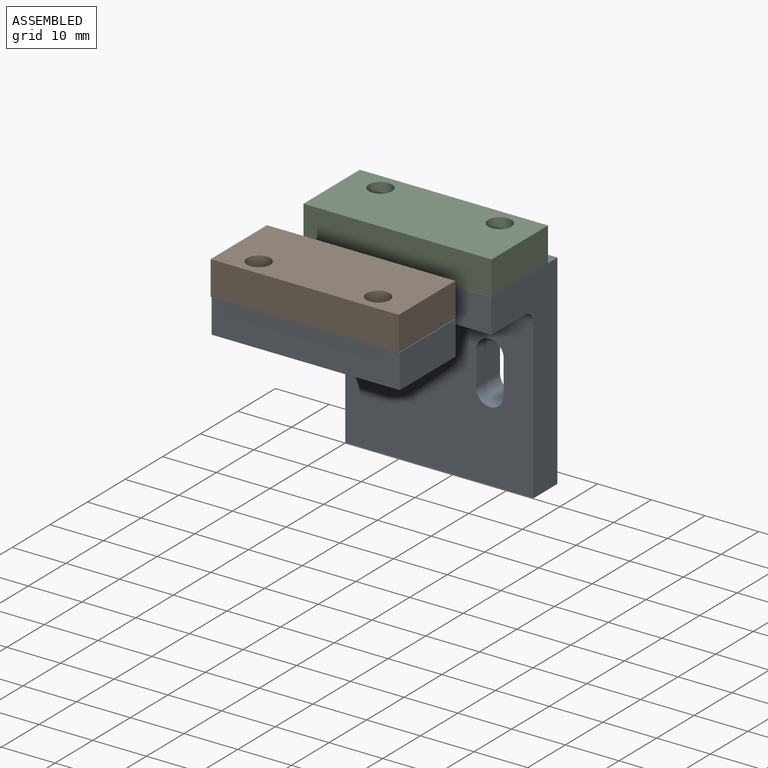
[diagram: assembled view]
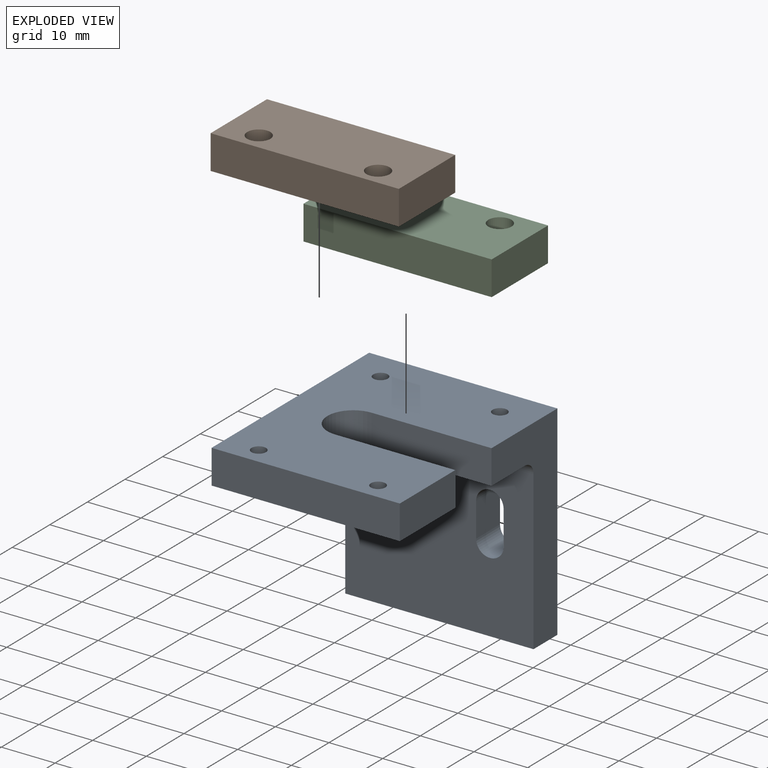
[diagram: exploded view]
GUIDED TOUR — MATED ASSEMBLY (Onshape document 3207c1e471c942e29e288c16, AutoMate assembly 3207c1e471c942e29e288c16_138207dac51f132d66890345_2d5dee2d8b15feb38909eebe_default)

This assembly has 3 components, labeled P0..P2 below (a component is one placed occurrence of a part; the same part can appear more than once), held together by 6 mates. A mate is a constraint between two components; its type names the relative motion it leaves free:
  CYLINDRICAL — leaves both rotation about and translation along the listed axis free,
  PLANAR — leaves sliding in the plane through the listed point (normal = the listed direction) and rotation about that normal free.
Axis/direction vectors are unit vectors and 'through' points are millimeter coordinates, both in the assembly's world frame.

MATES
  1. CYLINDRICAL "Cylindrical 2": P2 <-> P0, axis (0.000, 0.000, 1.000) through (-11.18, -6.05, 6.35) mm
  2. PLANAR "Planar 1": P2 <-> P0, direction (0.000, 0.000, -1.000) through (0.00, -10.21, 0.00) mm
  3. CYLINDRICAL "Cylindrical 4": P1 <-> P0, axis (0.000, 0.000, -1.000) through (-11.18, -38.43, 6.35) mm
  4. CYLINDRICAL "Cylindrical 1": P2 <-> P0, axis (0.000, 0.000, -1.000) through (11.05, -6.05, 6.35) mm
  5. PLANAR "Planar 2": P1 <-> P0, direction (0.000, 0.000, -1.000) through (-0.13, -34.26, 0.00) mm
  6. CYLINDRICAL "Cylindrical 3": P1 <-> P0, axis (0.000, 0.000, -1.000) through (11.05, -38.43, 3.18) mm

ASSEMBLY ORDER
  1. P2 — the base component [order verified]
  2. P1 [order verified]
  3. P0 [order verified]
Order-tag legend:
  [order verified] — this step's position reverses a verified removal order: the component was checked to insert without passing through the ones already placed.

Of the 3 components, 3 carry the full construction recipe — the FeatureScript program that regenerates the part's solid from scratch; the rest are supplied as boundary geometry only.
Each toured component is shown spotlighted twice — in the assembled view, then in the exploded view, where a leader line traces a displaced component back to its assembled socket (saturated green if recipe-attached, orange if geometry-only; every other component desaturated gray) — followed by its recipe or geometry summary and the mates that hold it.
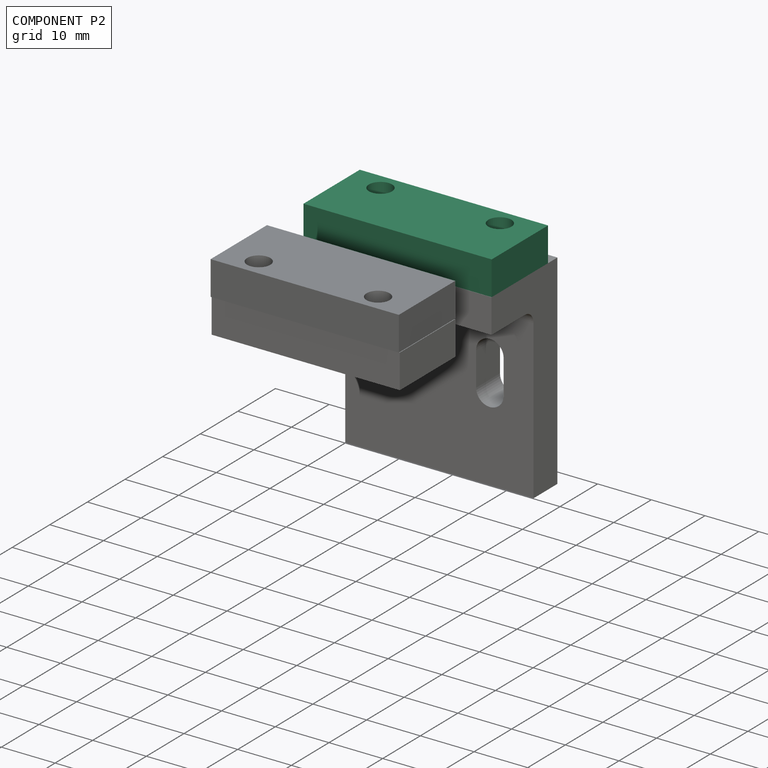
[diagram: component P2 — assembled]
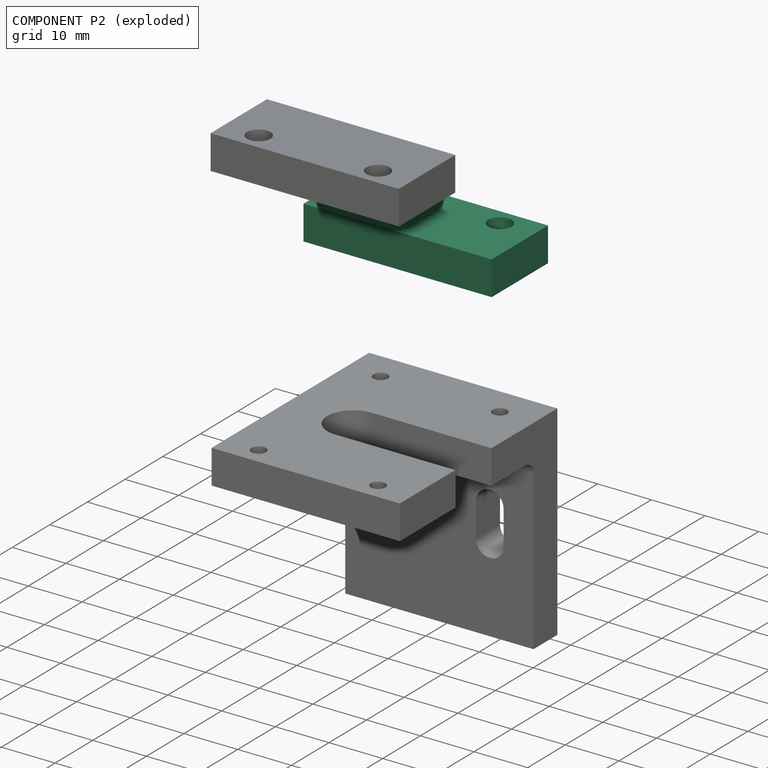
[diagram: component P2 — exploded]
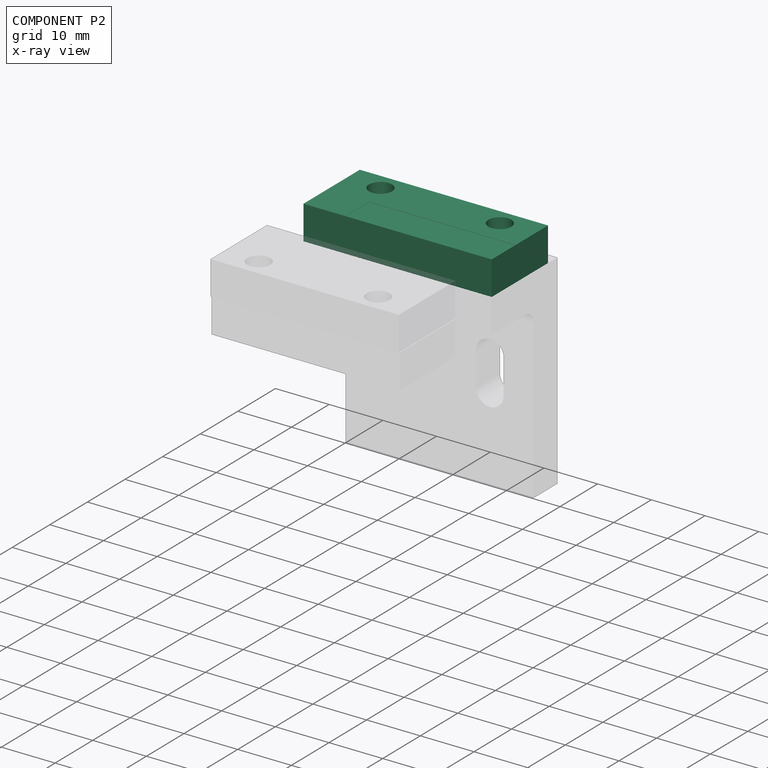
[diagram: component P2 — x-ray view]
COMPONENT P2 — same part as P1 (CADFS 00832528); its construction recipe is shown at P1.
Held by: CYLINDRICAL mate "Cylindrical 2" to P0; PLANAR mate "Planar 1" to P0; CYLINDRICAL mate "Cylindrical 1" to P0.
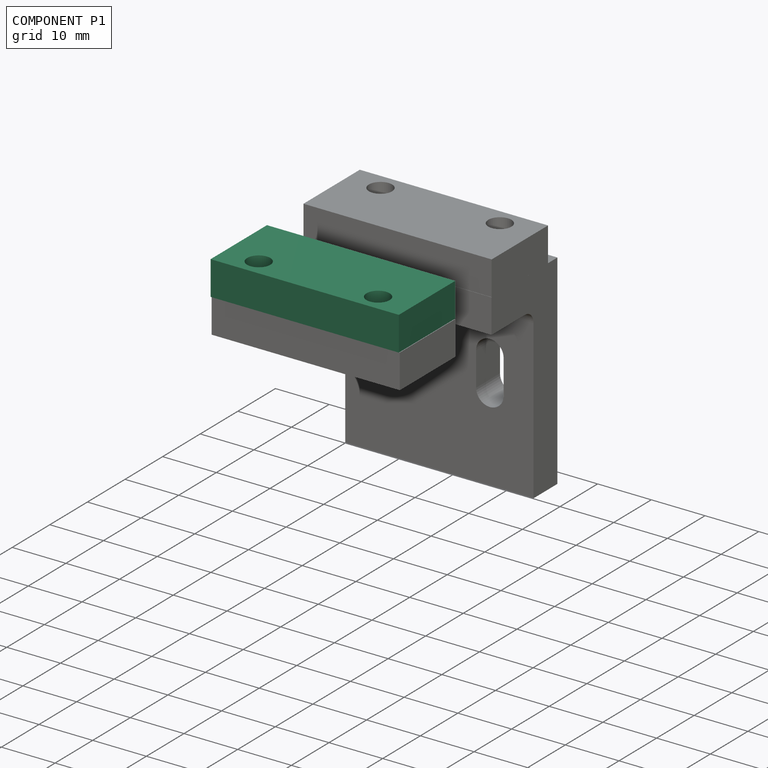
[diagram: component P1 — assembled]
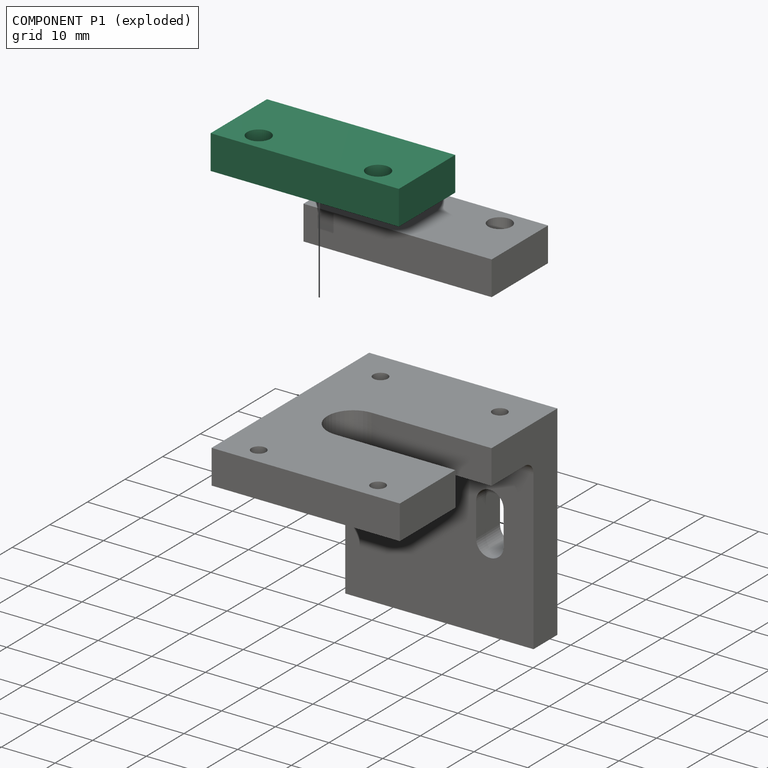
[diagram: component P1 — exploded]
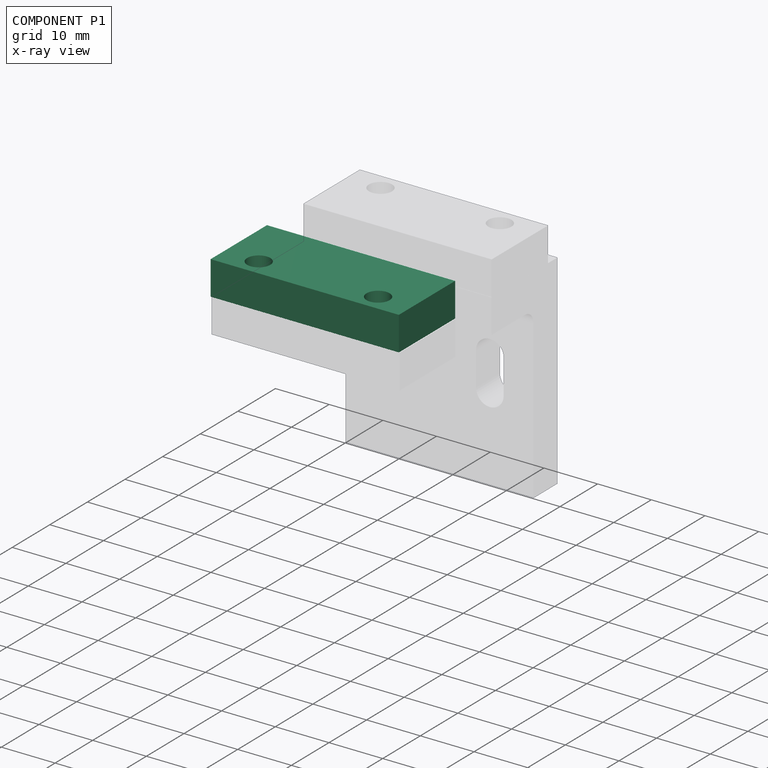
[diagram: component P1 — x-ray view]
COMPONENT P1 — recipe-attached (CADFS 00832528, mesh-verified: the recipe's output STEP matches this component's geometry to below the mesh-comparison resolution (tessellation chordal tolerance ~0.058 mm)).
Held by: CYLINDRICAL mate "Cylindrical 4" to P0; PLANAR mate "Planar 2" to P0; CYLINDRICAL mate "Cylindrical 3" to P0.
Construction recipe (FeatureScript — the CAD program that rebuilds this solid; sketch coordinates are in the units given by the * unit suffixes, e.g. mm):

FeatureScript 1511;
import(path : "onshape/std/geometry.fs", version : "1511.0");
import(path : "onshape/std/common.fs", version : "1511.0");
const mm = millimeter;
const VERTEX = EntityType.VERTEX;
const EDGE = EntityType.EDGE;
const FACE = EntityType.FACE;
const BODY = EntityType.BODY;
function v(x, y){return vector(x, y);}
function OD(order){return orderDisambiguation(order);}
function OSD(set){return originalSetDisambiguation(set);}
function TD(topology){return topologyDisambiguation(topology);}
function TDD(query){return trueDependencyDisambiguation(query);}
function sQuery(a, b, c) {return sketchEntityQuery(a, b, c);}

annotation { "Feature Type Name" : "Feature", "Feature Type Description" : "" }
export const myFeature = defineFeature(function(context is Context, id is Id, definition is map)
    precondition{}
    {
        {
            var Q0;
            Q0=qCreatedBy(makeId("Front.planeOp"),FACE);
            var sketch = newSketch(context, id + "F0", { "sketchPlane" : qUnion([Q0])});
            skLineSegment(sketch, "E0.bottom", {"start": v(-7.5, -17.53) * mm, "end": v(7.5, -17.53) * mm});
            skLineSegment(sketch, "E0.top", {"start": v(-7.5, 17.53) * mm, "end": v(7.5, 17.53) * mm});
            skLineSegment(sketch, "E0.left", {"start": v(-7.5, -17.53) * mm, "end": v(-7.5, 17.53) * mm});
            skLineSegment(sketch, "E0.right", {"start": v(7.5, -17.53) * mm, "end": v(7.5, 17.53) * mm});
            skLineSegment(sketch, "E1", {"start": v(7.5, 17.53) * mm, "end": v(-7.5, -17.53) * mm, "construction": true});
            skSolve(sketch);
        }
        {
            var Q0;
            Q0 = qSketchRegion(id + "F0", true);
            extrude(context, id + "F1", {"entities" : qUnion([Q0]), "depth" : 6.35 * mm, "offsetDistance" : 25.4 * mm});
        }
        {
            var Q0;
            Q0=makeQuery(id+"F1.opExtrude","CAP_FACE",FACE,{"disambiguationData":[OSD([sQuery(id+"F0.wireOp",EDGE,"E0.bottom"),sQuery(id+"F0.wireOp",EDGE,"E0.top"),sQuery(id+"F0.wireOp",EDGE,"E0.left"),sQuery(id+"F0.wireOp",EDGE,"E0.right")])],"isStart":false});
            var sketch = newSketch(context, id + "F2", { "sketchPlane" : qUnion([Q0])});
            skPoint(sketch, "E2", {"position": v(-3.94, 11.18) * mm});
            skPoint(sketch, "E3", {"position": v(-3.94, -11.05) * mm});
            skSolve(sketch);
        }
        {
            var Q0;
            Q0=sQuery(id+"F2.wireOp",VERTEX,"E2");
            var Q1;
            Q1=sQuery(id+"F2.wireOp",VERTEX,"E3");
            var Q2;
            Q2=makeQuery(id+"F1.opExtrude","SWEPT_BODY",BODY,{"disambiguationData":[OSD([sQuery(id+"F0.wireOp",EDGE,"E0.bottom"),sQuery(id+"F0.wireOp",EDGE,"E0.top"),sQuery(id+"F0.wireOp",EDGE,"E0.left"),sQuery(id+"F0.wireOp",EDGE,"E0.right")])]});
            hole(context, id + "F3", {"style" : HoleStyle.SIMPLE, "endStyle" : HoleEndStyle.THROUGH, "holeDiameter" : 4.32 * mm, "majorDiameter" : 6.35 * mm, "isTappedThrough" : true, "tappedDepth" : 12.7 * mm, "tapClearance" : 3, "locations" : qUnion([Q0, Q1]), "scope" : qUnion([Q2])});
        }
    });
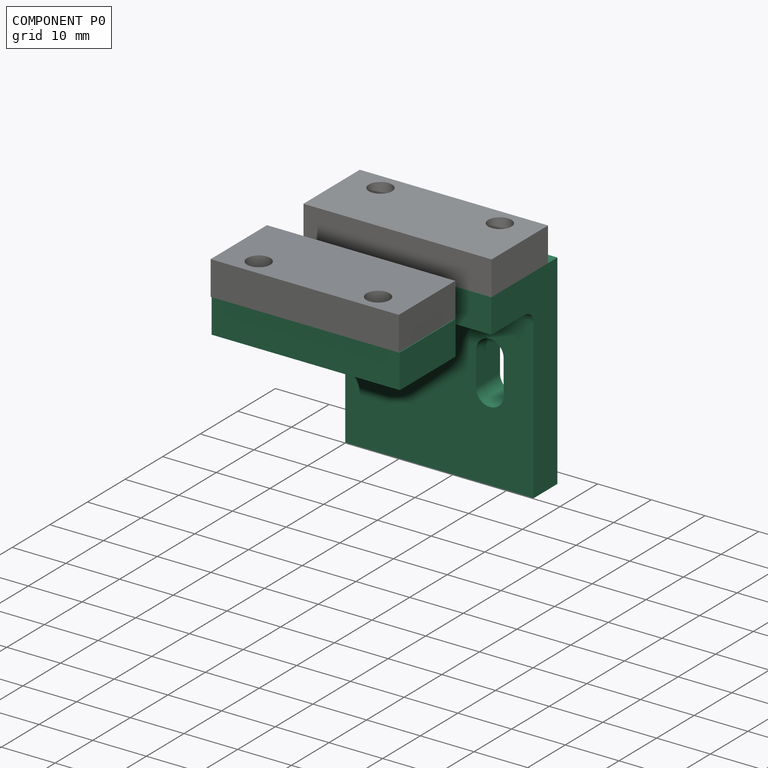
[diagram: component P0 — assembled]
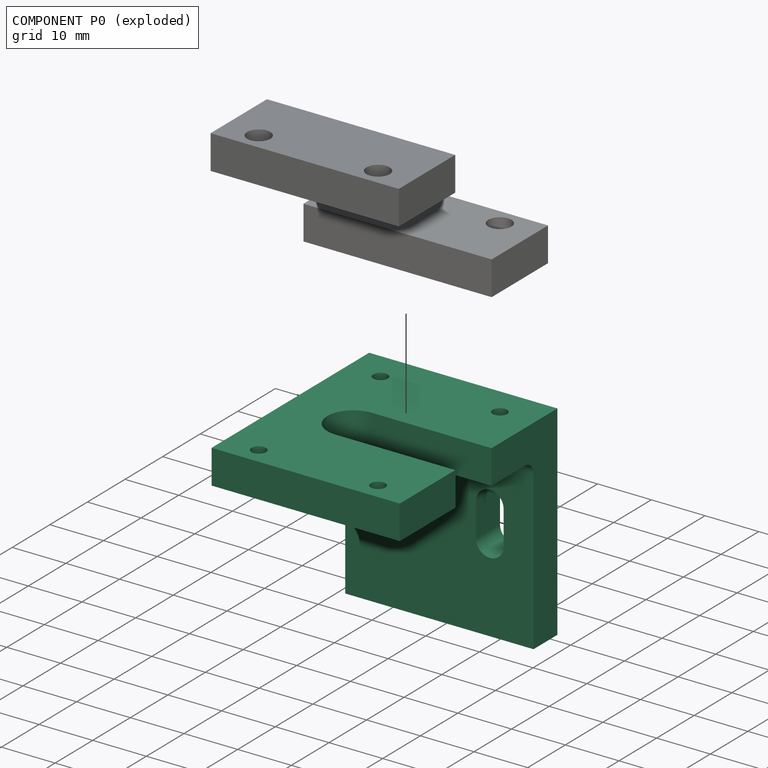
[diagram: component P0 — exploded]
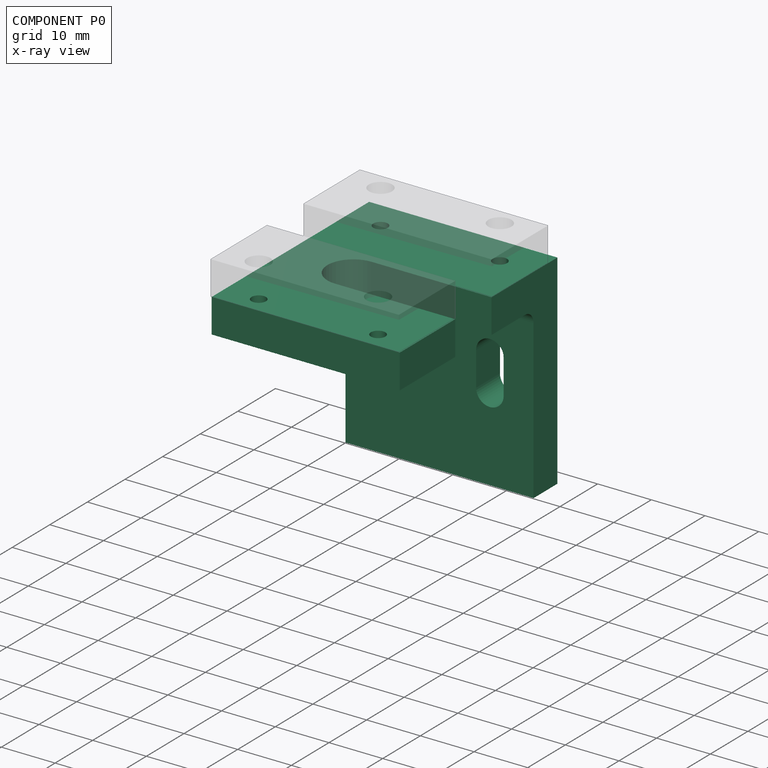
[diagram: component P0 — x-ray view]
COMPONENT P0 — recipe-attached (CADFS 00832585, mesh-verified: the recipe's output STEP matches this component's geometry to below the mesh-comparison resolution (tessellation chordal tolerance ~0.0999 mm)).
Held by: CYLINDRICAL mate "Cylindrical 2" to P2; PLANAR mate "Planar 1" to P2; CYLINDRICAL mate "Cylindrical 4" to P1; CYLINDRICAL mate "Cylindrical 1" to P2; PLANAR mate "Planar 2" to P1; CYLINDRICAL mate "Cylindrical 3" to P1.
Construction recipe (FeatureScript — the CAD program that rebuilds this solid; sketch coordinates are in the units given by the * unit suffixes, e.g. mm):

FeatureScript 1511;
import(path : "onshape/std/geometry.fs", version : "1511.0");
import(path : "onshape/std/common.fs", version : "1511.0");
const mm = millimeter;
const VERTEX = EntityType.VERTEX;
const EDGE = EntityType.EDGE;
const FACE = EntityType.FACE;
const BODY = EntityType.BODY;
function v(x, y){return vector(x, y);}
function OD(order){return orderDisambiguation(order);}
function OSD(set){return originalSetDisambiguation(set);}
function TD(topology){return topologyDisambiguation(topology);}
function TDD(query){return trueDependencyDisambiguation(query);}
function sQuery(a, b, c) {return sketchEntityQuery(a, b, c);}

annotation { "Feature Type Name" : "Feature", "Feature Type Description" : "" }
export const myFeature = defineFeature(function(context is Context, id is Id, definition is map)
    precondition{}
    {
        {
            var Q0;
            Q0=qCreatedBy(makeId("Right.planeOp"),FACE);
            var sketch = newSketch(context, id + "F0", { "sketchPlane" : qUnion([Q0])});
            skLineSegment(sketch, "E0", {"start": v(-41.91, 0) * mm, "end": v(0, 0) * mm});
            skLineSegment(sketch, "E1", {"start": v(0, 0) * mm, "end": v(0, -38.1) * mm});
            skLineSegment(sketch, "E2", {"start": v(0, -38.1) * mm, "end": v(-6.35, -38.1) * mm});
            skLineSegment(sketch, "E3", {"start": v(-6.35, -38.1) * mm, "end": v(-6.35, -8.64) * mm});
            skLineSegment(sketch, "E4", {"start": v(-8.64, -6.35) * mm, "end": v(-41.91, -6.35) * mm});
            skLineSegment(sketch, "E5", {"start": v(-41.91, -6.35) * mm, "end": v(-41.91, 0) * mm});
            skPoint(sketch, "E6.visualSharp", {"position": v(-6.35, -6.35) * mm});
            skArc(sketch, "E6.filletArc", {"start": v(-6.35, -8.64) * mm, "mid": v(-7.02, -7.02) * mm, "end": v(-8.64, -6.35) * mm});
            skSolve(sketch);
        }
        {
            var Q0;
            Q0 = qSketchRegion(id + "F0", true);
            extrude(context, id + "F1", {"entities" : qUnion([Q0]), "endBound" : BoundingType.SYMMETRIC, "depth" : 35.05 * mm, "offsetDistance" : 25.4 * mm});
        }
        {
            var Q0;
            Q0=makeQuery(id+"F1.opExtrude","SWEPT_FACE",FACE,{"disambiguationData":[OSD([sQuery(id+"F0.wireOp",EDGE,"E0")])]});
            var sketch = newSketch(context, id + "F2", { "sketchPlane" : qUnion([Q0])});
            skLineSegment(sketch, "E7", {"start": v(17.53, -17.53) * mm, "end": v(-4.83, -17.53) * mm});
            skLineSegment(sketch, "E8", {"start": v(17.53, -17.53) * mm, "end": v(17.53, -27.18) * mm});
            skLineSegment(sketch, "E9", {"start": v(17.53, -27.18) * mm, "end": v(-4.83, -27.18) * mm});
            skArc(sketch, "E10", {"start": v(-4.83, -17.53) * mm, "mid": v(-9.65, -22.35) * mm, "end": v(-4.83, -27.18) * mm});
            skSolve(sketch);
        }
        {
            var Q0;
            Q0 = qSketchRegion(id + "F2", true);
            extrude(context, id + "F3", {"entities" : qUnion([Q0]), "operationType" : NewBodyOperationType.REMOVE, "endBound" : BoundingType.UP_TO_NEXT, "oppositeDirection" : true, "depth" : 25.4 * mm, "offsetDistance" : 25.4 * mm});
        }
        {
            var Q0;
            Q0=makeQuery(id+"F1.opExtrude","SWEPT_FACE",FACE,{"disambiguationData":[OSD([sQuery(id+"F0.wireOp",EDGE,"E0")])]});
            var sketch = newSketch(context, id + "F4", { "sketchPlane" : qUnion([Q0])});
            skPoint(sketch, "E11", {"position": v(-11.18, -6.05) * mm});
            skPoint(sketch, "E12", {"position": v(11.05, -6.05) * mm});
            skPoint(sketch, "E13", {"position": v(-11.18, -38.43) * mm});
            skPoint(sketch, "E14", {"position": v(11.05, -38.43) * mm});
            skSolve(sketch);
        }
        {
            var Q0;
            Q0=sQuery(id+"F4.wireOp",VERTEX,"E11");
            var Q1;
            Q1=sQuery(id+"F4.wireOp",VERTEX,"E12");
            var Q2;
            Q2=sQuery(id+"F4.wireOp",VERTEX,"E13");
            var Q3;
            Q3=sQuery(id+"F4.wireOp",VERTEX,"E14");
            var Q4;
            Q4=makeQuery(id+"F1.opExtrude","SWEPT_BODY",BODY,{"disambiguationData":[OSD([sQuery(id+"F0.wireOp",EDGE,"E0"),sQuery(id+"F0.wireOp",EDGE,"E1"),sQuery(id+"F0.wireOp",EDGE,"E2"),sQuery(id+"F0.wireOp",EDGE,"E3"),sQuery(id+"F0.wireOp",EDGE,"E4"),sQuery(id+"F0.wireOp",EDGE,"E5"),sQuery(id+"F0.wireOp",EDGE,"E6.filletArc")])]});
            hole(context, id + "F5", {"style" : HoleStyle.SIMPLE, "endStyle" : HoleEndStyle.BLIND, "standardTappedOrClearance" : lookupTablePath({ "standard" : "ANSI", "engagement" : "75%", "pitch" : "32 tpi", "size" : "#6", "type" : "Tapped" }), "standardBlindInLast" : lookupTablePath({ "standard" : "ANSI", "engagement" : "75%", "pitch" : "32 tpi", "size" : "#6", "type" : "Tapped" }), "holeDiameter" : 2.7 * mm, "majorDiameter" : 3.5 * mm, "showTappedDepth" : true, "holeDepth" : 8.73 * mm, "tappedDepth" : 6.35 * mm, "tapClearance" : 3, "locations" : qUnion([Q0, Q1, Q2, Q3]), "scope" : qUnion([Q4])});
        }
        {
            var Q0;
            Q0=makeQuery(id+"F1.opExtrude","SWEPT_FACE",FACE,{"disambiguationData":[OSD([sQuery(id+"F0.wireOp",EDGE,"E1")])]});
            var sketch = newSketch(context, id + "F6", { "sketchPlane" : qUnion([Q0])});
            skLineSegment(sketch, "E15.left", {"start": v(12.22, -16) * mm, "end": v(12.22, -22.35) * mm});
            skLineSegment(sketch, "E15.right", {"start": v(7.09, -16) * mm, "end": v(7.09, -22.35) * mm});
            skLineSegment(sketch, "E16.left", {"start": v(-6.83, -16) * mm, "end": v(-6.83, -22.35) * mm});
            skLineSegment(sketch, "E16.right", {"start": v(-11.96, -16) * mm, "end": v(-11.96, -22.35) * mm});
            skArc(sketch, "E17", {"start": v(12.22, -16) * mm, "mid": v(9.65, -13.44) * mm, "end": v(7.09, -16) * mm});
            skArc(sketch, "E18", {"start": v(7.09, -22.35) * mm, "mid": v(9.65, -24.92) * mm, "end": v(12.22, -22.35) * mm});
            skArc(sketch, "E19", {"start": v(-6.83, -16) * mm, "mid": v(-9.4, -13.44) * mm, "end": v(-11.96, -16) * mm});
            skArc(sketch, "E20", {"start": v(-11.96, -22.35) * mm, "mid": v(-9.4, -24.92) * mm, "end": v(-6.83, -22.35) * mm});
            skSolve(sketch);
        }
        {
            var Q0;
            Q0 = qSketchRegion(id + "F6", true);
            extrude(context, id + "F7", {"entities" : qUnion([Q0]), "operationType" : NewBodyOperationType.REMOVE, "endBound" : BoundingType.UP_TO_NEXT, "oppositeDirection" : true, "depth" : 25.4 * mm, "offsetDistance" : 25.4 * mm});
        }
    });
PROVENANCE & LICENSES
Assembly (occurrences, transforms, mates, per-part STEP geometry): AutoMate dataset, Zenodo record 7776208, CC0.
Construction recipes: CADFS (HuggingFace VladPyatov/CADFS, CC-BY-4.0, layered over the ABC dataset), FeatureScript reconstruction programs keyed by ABC model id.
Join: ABC meta listings map ABC model id -> Onshape documentId; within a shared document, parts are matched by geometric signature (bounding-box dims + volume at 0.1% relative tolerance, exact B-rep face/solid counts).
Verification: 3 of this assembly's 3 components carry a recipe attachment, and every attachment is mesh-verified: the CADFS STEP and the AutoMate member STEP were compared as meshes in their shared local frame (symmetric sampled-point-to-mesh distance); worst across the 3 attachments: below the mesh-comparison resolution (tessellation chordal tolerance ~0.0999 mm) on a 67 mm part.
Renders: orthographic iso camera (az 35 / el 25); the floor grid conveys scale (grid pitch printed in each image; no ruler). In the exploded view each component is displaced by its stored offset vector: the offsets alone carry the explosion direction (mate normal/axis signs are not orientation cues and do not encode it), and separation distances are assigned per mate-chain, not proportionally to assembly-order depth.
